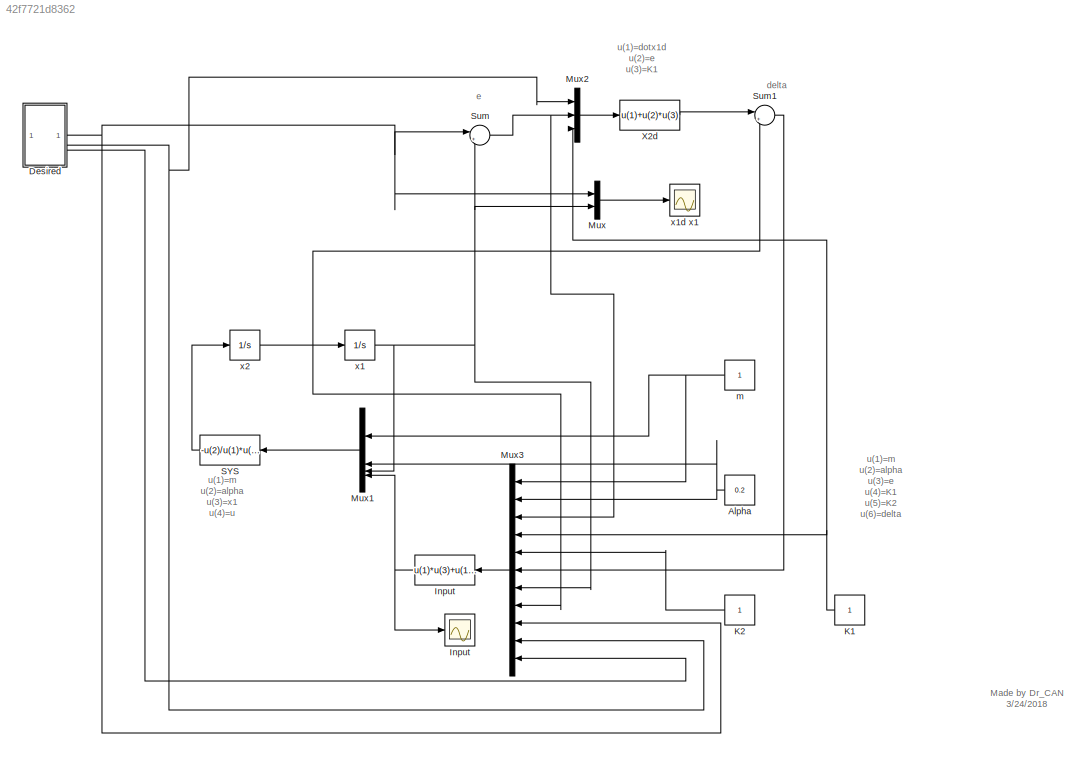
MODEL slx_42f7721d8362
KIND model
CONFIG AbsTol = auto
CONFIG EnableMultiTasking = on
CONFIG FixedStep = 0.1
CONFIG MaxStep = auto
CONFIG MinStep = auto
CONFIG RelTol = 1e-3
CONFIG SampleTimeConstraint = Unconstrained
CONFIG SolverName = ode45
CONFIG StartTime = 0.0
CONFIG StopTime = 50
BLOCK [Constant] Alpha
  NameLocation = top
  Value = 0.2
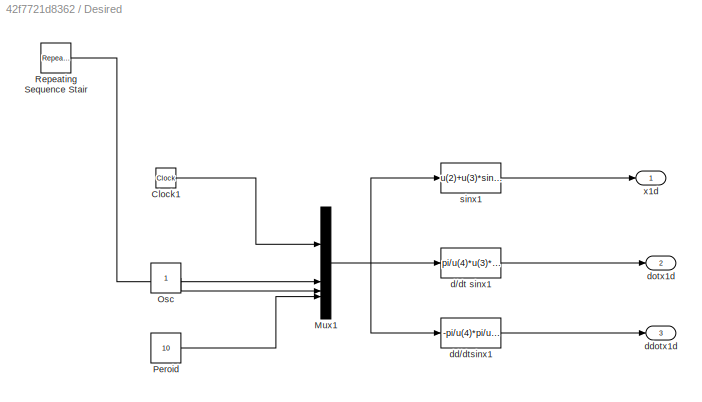
BLOCK [SubSystem] Desired
BLOCK [Clock] Desired/Clock1
  Decimation = 100
BLOCK [Mux] Desired/Mux1
  DisplayOption = bar
BLOCK [Constant] Desired/Osc
BLOCK [Constant] Desired/Peroid
  Value = 10
BLOCK [Reference] Desired/Repeating Sequence Stair  REF=simulink/Sources/Repeating
Sequence
Stair
  SourceBlock = simulink/Sources/Repeating\nSequence\nStair
  SourceType = Repeating Sequence Stair
BLOCK [Fcn] Desired/d//dt sinx1
  Expr = pi/u(4)*u(3)*cos(u(1)*pi/u(4))
BLOCK [Fcn] Desired/dd//dtsinx1
  Expr = -pi/u(4)*pi/u(4)*u(3)*sin(u(1)*pi/u(4))
BLOCK [Outport] Desired/ddotx1d
  Port = 3
BLOCK [Outport] Desired/dotx1d
  Port = 2
BLOCK [Fcn] Desired/sinx1
  Expr = u(2)+u(3)*sin(u(1)*pi/u(4))
BLOCK [Outport] Desired/x1d
BLOCK [Fcn] Input
  Expr = u(1)*u(3)+u(1)*u(11)+u(1)*u(4)*(u(10)-u(8))+u(2)*u(7)^3+u(1)*u(5)*u(6)
  NameLocation = top
BLOCK [Scope] Input 
  Floating = off
  NumInputPorts = 1
  ScopeSpecificationString = C++SS(StrPVP('Location','[2259, 255, 3091, 841]'),StrPVP('Open','off'),StrPVP('ZoomMode','yonly'),MxPVP('AxesTitles',54,'struct(''axes1'',''%<SignalLabel>'')'),MxPVP('ScopeGraphics',57,'struct(''FigureColor'',''[0.5 0.5 0.5]'',''AxesColor'',''[0 0 0]'',''AxesTickColor'',''[1 1 1]'',''LineColors'',''[1 1 0;1 0 1;0 1 1;1 0 0;0 1 0;0 0 1]'',''LineStyles'',''-|-|-|-|-|-'',''LineWidths'',''[0.5 0.5 0.5...<+225ch>
BLOCK [Constant] K1
  NameLocation = top
BLOCK [Constant] K2
  NameLocation = top
BLOCK [Mux] Mux
  DisplayOption = bar
  Inputs = 2
BLOCK [Mux] Mux1
  DisplayOption = bar
  NameLocation = top
BLOCK [Mux] Mux2
  DisplayOption = bar
  Inputs = 3
BLOCK [Mux] Mux3
  DisplayOption = bar
  Inputs = 11
  NameLocation = top
BLOCK [Fcn] SYS
  Expr = -u(2)/u(1)*u(3)^3+1/u(1)*u(4)
  NameLocation = top
BLOCK [Sum] Sum
  Inputs = |+-
BLOCK [Sum] Sum1
  Inputs = |+-
BLOCK [Fcn] X2d
  Expr = u(1)+u(2)*u(3)
BLOCK [Constant] m
  NameLocation = top
BLOCK [Integrator] x1
BLOCK [Scope] x1d x1
  Floating = off
  NumInputPorts = 1
  ScopeSpecificationString = C++SS(StrPVP('Location','[2328, 204, 3318, 790]'),StrPVP('Open','off'),StrPVP('ZoomMode','yonly'),MxPVP('AxesTitles',54,'struct(''axes1'',''%<SignalLabel>'')'),MxPVP('ScopeGraphics',57,'struct(''FigureColor'',''[0.5 0.5 0.5]'',''AxesColor'',''[0 0 0]'',''AxesTickColor'',''[1 1 1]'',''LineColors'',''[1 1 0;1 0 1;0 1 1;1 0 0;0 1 0;0 0 1]'',''LineStyles'',''-|-|-|-|-|-'',''LineWidths'',''[0.5 0.5 0.5...<+193ch>
BLOCK [Integrator] x2
  UpperSaturationLimit = 10
  ZeroCross = off
ANNOTATION (root): u(1)=m u(2)=alpha u(3)=x1 u(4)=u
ANNOTATION (root): Made by Dr_CAN 3/24/2018
ANNOTATION (root): delta
ANNOTATION (root): e
ANNOTATION (root): u(1)=dotx1d u(2)=e u(3)=K1
ANNOTATION (root): u(1)=m u(2)=alpha u(3)=e u(4)=K1 u(5)=K2 u(6)=delta u(7)=x1 u(8)=x2 u(9)=x1d u(10)=dotx1d u(11)=ddotx1d
NET Alpha:1 -> Mux1:2, Mux3:2
LINE Desired/Clock1:1 -> Desired/Mux1:1
NET Desired/Mux1:1 -> Desired/d//dt sinx1:1, Desired/dd//dtsinx1:1, Desired/sinx1:1
LINE Desired/Osc:1 -> Desired/Mux1:3
LINE Desired/Peroid:1 -> Desired/Mux1:4
LINE Desired/Repeating Sequence Stair:1 -> Desired/Mux1:2
LINE Desired/d//dt sinx1:1 -> Desired/dotx1d:1
LINE Desired/dd//dtsinx1:1 -> Desired/ddotx1d:1
LINE Desired/sinx1:1 -> Desired/x1d:1
NET Desired:1 -> Mux3:9, Mux:1, Sum:1
NET Desired:2 -> Mux2:1, Mux3:10
LINE Desired:3 -> Mux3:11
NET Input:1 -> Input :1, Mux1:4
NET K1:1 -> Mux2:3, Mux3:4
LINE K2:1 -> Mux3:5
LINE Mux1:1 -> SYS:1
LINE Mux2:1 -> X2d:1
LINE Mux3:1 -> Input:1
LINE Mux:1 -> x1d x1:1
LINE SYS:1 -> x2:1
LINE Sum1:1 -> Mux3:6
NET Sum:1 -> Mux2:2, Mux3:3
LINE X2d:1 -> Sum1:1
NET m:1 -> Mux1:1, Mux3:1
NET x1:1 -> Mux1:3, Mux3:7, Mux:2, Sum:2
NET x2:1 -> Mux3:8, Sum1:2, x1:1
note: NET lines group one-source signal fan-out (src -> all destinations, sorted); 1:1 wires keep LINE
